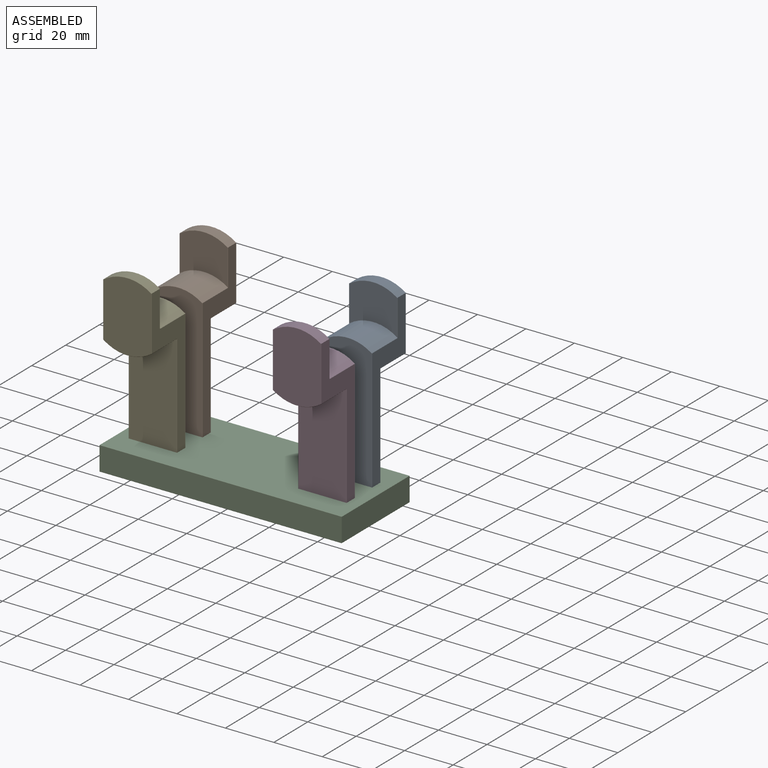
[diagram: assembled view]
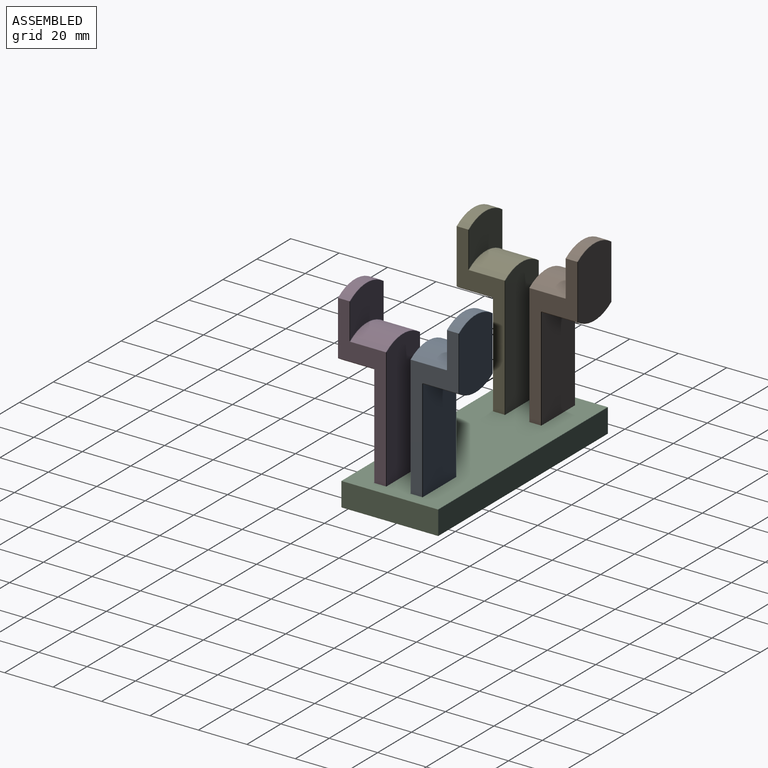
[diagram: assembled view, second angle]
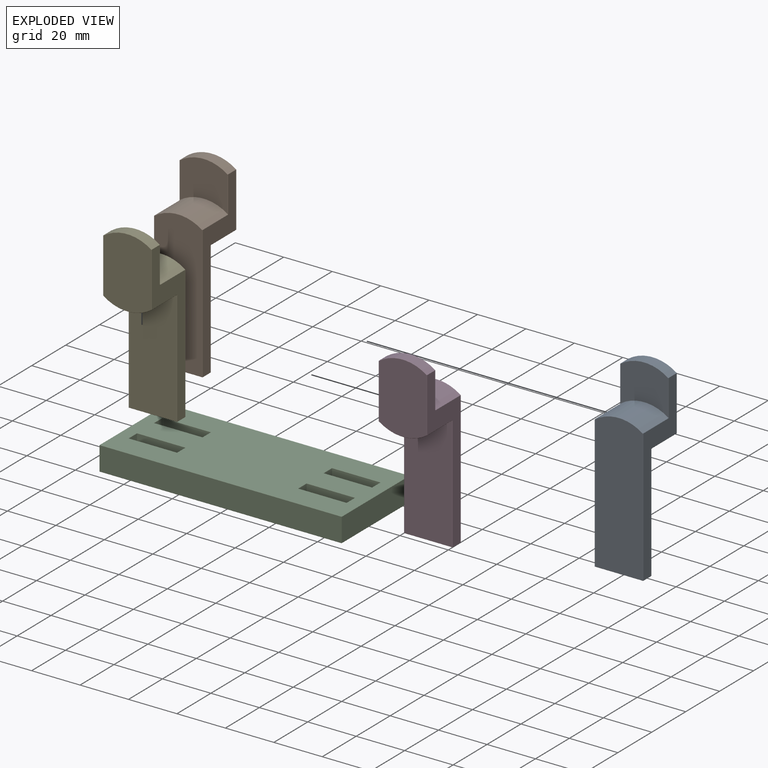
[diagram: exploded view]
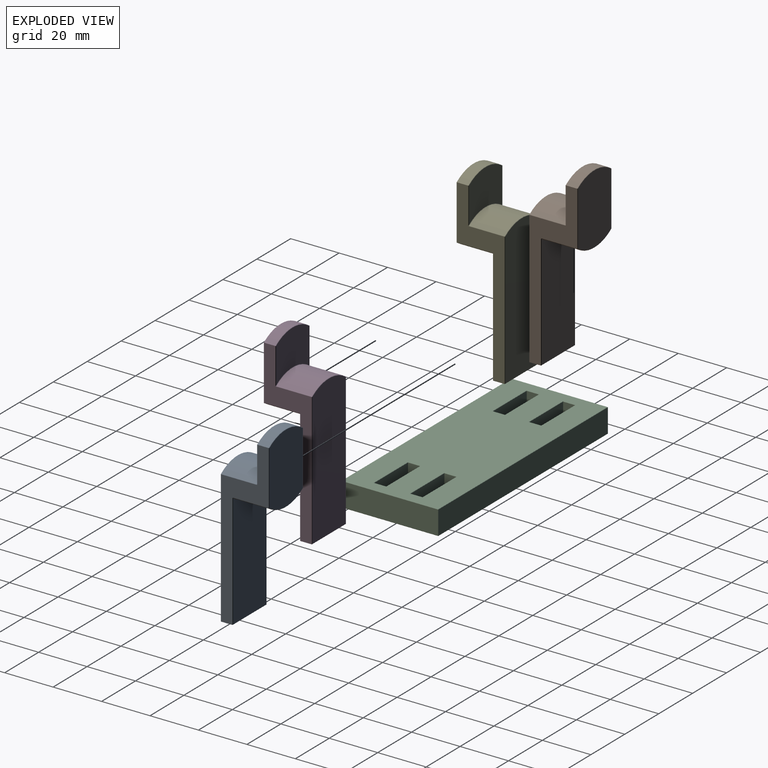
[diagram: exploded view, second angle]
ASSEMBLY  parts=5 mates=2
PART A: 38 faces, bbox 20x20x73.3 mm
  f0: plane 70x19.8mm, normal (-1,0,0), area 447mm2, adj f3,f7,f10,f11,f12,f15,f24,f25
  f1: cylinder r=17mm len=19.92mm, axis (0,-1,0), area 314.9mm2, adj f25,f32,f33,f37
  f2: plane 70x19.8mm, normal (1,0,0), area 447mm2, adj f3,f7,f17,f20,f22,f23,f31,f34
  f3: cylinder r=17mm len=20mm, axis (0,-1,0), area 102.6mm2, adj f0,f2,f16,f27
  f4: plane 28.8x19.8mm, normal (0,1,0), area 529.7mm2, adj f24,f27,f31,f32
  f5: plane 19.8x17.96mm, normal (0,-1,0), area 292.8mm2, adj f12,f16,f19,f20
  f6: cylinder r=17mm len=19.92mm, axis (0,1,0), area 314.9mm2, adj f11,f18,f19,f23
  f7: plane 20x4.8mm, normal (0,0,-1), area 96mm2, adj f0,f2,f13,f30
  f8: plane 58.05x19.8mm, normal (0,-1,0), area 1129.2mm2, adj f10,f13,f17,f18
  f9: plane 47.21x19.8mm, normal (0,1,0), area 892.2mm2, adj f26,f30,f33,f34
  f10: plane 54.95x0.1mm, normal (-0.71,-0.71,0), area 7.8mm2, adj f0,f8,f13,f14
  f11: plane 14.8x0.08mm, normal (-0.89,0,0.46), area 1.3mm2, adj f0,f6,f14,f15
  f12: plane 14.81x0.1mm, normal (-0.71,-0.71,0), area 2.1mm2, adj f0,f5,f15,f16
  f13: plane 20x0.1mm, normal (0,-0.71,-0.71), area 2.8mm2, adj f7,f8,f10,f17
  f14: plane 0.1x0.1mm, normal (-0.67,-0.67,0.34), area 0mm2, adj f10,f11,f18
  f15: bspline ~0.25x0.2mm, area 0mm2, adj f0,f11,f12,f19
  f16: cone r=16.9mm half-angle=45deg, axis (0,1,0), area 3mm2, adj f3,f5,f12,f20
  f17: plane 54.95x0.1mm, normal (0.71,-0.71,0), area 7.8mm2, adj f2,f8,f13,f21
  f18: cone r=16.9mm half-angle=45deg, axis (0,1,0), area 3mm2, adj f6,f8,f14,f21
  f19: cone r=17mm half-angle=45deg, axis (0,1,0), area 3mm2, adj f5,f6,f15,f22
  f20: plane 14.81x0.1mm, normal (0.71,-0.71,0), area 2.1mm2, adj f2,f5,f16,f22
  f21: plane 0.1x0.1mm, normal (0.67,-0.67,0.34), area 0mm2, adj f17,f18,f23
  f22: bspline ~0.25x0.2mm, area 0mm2, adj f2,f19,f20,f23
  f23: plane 14.8x0.08mm, normal (0.89,0,0.46), area 1.3mm2, adj f2,f6,f21,f22
  f24: plane 22.44x0.1mm, normal (-0.71,0.71,0), area 3.2mm2, adj f0,f4,f27,f28
  f25: plane 14.8x0.08mm, normal (-0.89,0,-0.46), area 1.3mm2, adj f0,f1,f28,f29
  f26: plane 47.31x0.1mm, normal (-0.71,0.71,0), area 6.7mm2, adj f0,f9,f29,f30
  f27: cone r=17mm half-angle=45deg, axis (0,-1,0), area 3mm2, adj f3,f4,f24,f31
  f28: plane 0.1x0.1mm, normal (-0.67,0.67,-0.34), area 0mm2, adj f24,f25,f32
  f29: bspline ~0.25x0.2mm, area 0mm2, adj f0,f25,f26,f33
  f30: plane 20x0.1mm, normal (0,0.71,-0.71), area 2.8mm2, adj f7,f9,f26,f34
  f31: plane 22.44x0.1mm, normal (0.71,0.71,0), area 3.2mm2, adj f2,f4,f27,f35
  f32: cone r=17mm half-angle=45deg, axis (0,-1,0), area 3mm2, adj f1,f4,f28,f35
  f33: cone r=17.1mm half-angle=45deg, axis (0,-1,0), area 3mm2, adj f1,f9,f29,f36
  f34: plane 47.31x0.1mm, normal (0.71,0.71,0), area 6.7mm2, adj f2,f9,f30,f36
  f35: plane 0.1x0.1mm, normal (0.67,0.67,-0.34), area 0mm2, adj f31,f32,f37
  f36: bspline ~0.25x0.2mm, area 0mm2, adj f2,f33,f34,f37
  f37: plane 14.8x0.08mm, normal (0.89,0,-0.46), area 1.3mm2, adj f1,f2,f35,f36
PART B: same geometry as A
PART C: 50 faces, bbox 100x40x10 mm
  f0: plane 99.8x39.8mm, normal (0,0,1), area 3551.9mm2, adj f30,f31,f32,f33,f34,f35,f36,f37
  f1: plane 100x9.8mm, normal (0,-1,0), area 980mm2, adj f2,f4,f27,f47
  f2: plane 40x9.8mm, normal (1,0,0), area 392mm2, adj f1,f3,f26,f46
  f3: plane 100x9.8mm, normal (0,1,0), area 980mm2, adj f2,f4,f28,f48
  f4: plane 40x9.8mm, normal (-1,0,0), area 392mm2, adj f1,f3,f29,f49
  f5: plane 99.8x39.8mm, normal (0,0,-1), area 3972mm2, adj f26,f27,f28,f29
  f6: plane 5x4.9mm, normal (-1,0,0), area 24.5mm2, adj f7,f9,f10,f42
  f7: plane 20x4.9mm, normal (0,-1,0), area 98mm2, adj f6,f8,f10,f43
  f8: plane 5x4.9mm, normal (1,0,0), area 24.5mm2, adj f7,f9,f10,f45
  f9: plane 20x4.9mm, normal (0,1,0), area 98mm2, adj f6,f8,f10,f44
  f10: plane 20x5mm, normal (0,0,1), area 100mm2, adj f6,f7,f8,f9
  f11: plane 5x4.9mm, normal (-1,0,0), area 24.5mm2, adj f12,f14,f15,f38
  f12: plane 20x4.9mm, normal (0,-1,0), area 98mm2, adj f11,f13,f15,f40
  f13: plane 5x4.9mm, normal (1,0,0), area 24.5mm2, adj f12,f14,f15,f41
  f14: plane 20x4.9mm, normal (0,1,0), area 98mm2, adj f11,f13,f15,f39
  f15: plane 20x5mm, normal (0,0,1), area 100mm2, adj f11,f12,f13,f14
  f16: plane 5x4.9mm, normal (1,0,0), area 24.5mm2, adj f17,f19,f20,f34
  f17: plane 20x4.9mm, normal (0,1,0), area 98mm2, adj f16,f18,f20,f36
  f18: plane 5x4.9mm, normal (-1,0,0), area 24.5mm2, adj f17,f19,f20,f37
  f19: plane 20x4.9mm, normal (0,-1,0), area 98mm2, adj f16,f18,f20,f35
  f20: plane 20x5mm, normal (0,0,1), area 100mm2, adj f16,f17,f18,f19
  f21: plane 5x4.9mm, normal (1,0,0), area 24.5mm2, adj f22,f24,f25,f30
  f22: plane 20x4.9mm, normal (0,1,0), area 98mm2, adj f21,f23,f25,f31
  f23: plane 5x4.9mm, normal (-1,0,0), area 24.5mm2, adj f22,f24,f25,f33
  f24: plane 20x4.9mm, normal (0,-1,0), area 98mm2, adj f21,f23,f25,f32
  f25: plane 20x5mm, normal (0,0,1), area 100mm2, adj f21,f22,f23,f24
  f26: plane 40x0.1mm, normal (0.71,0,-0.71), area 5.6mm2, adj f2,f5,f27,f28
  f27: plane 100x0.1mm, normal (0,-0.71,-0.71), area 14.1mm2, adj f1,f5,f26,f29
  f28: plane 100x0.1mm, normal (0,0.71,-0.71), area 14.1mm2, adj f3,f5,f26,f29
  f29: plane 40x0.1mm, normal (-0.71,0,-0.71), area 5.6mm2, adj f4,f5,f27,f28
  f30: plane 5.2x0.1mm, normal (0.71,0,0.71), area 0.7mm2, adj f0,f21,f31,f32
  f31: plane 20.2x0.1mm, normal (0,0.71,0.71), area 2.8mm2, adj f0,f22,f30,f33
  f32: plane 20.2x0.1mm, normal (0,-0.71,0.71), area 2.8mm2, adj f0,f24,f30,f33
  f33: plane 5.2x0.1mm, normal (-0.71,0,0.71), area 0.7mm2, adj f0,f23,f31,f32
  f34: plane 5.2x0.1mm, normal (0.71,0,0.71), area 0.7mm2, adj f0,f16,f35,f36
  f35: plane 20.2x0.1mm, normal (0,-0.71,0.71), area 2.8mm2, adj f0,f19,f34,f37
  f36: plane 20.2x0.1mm, normal (0,0.71,0.71), area 2.8mm2, adj f0,f17,f34,f37
  f37: plane 5.2x0.1mm, normal (-0.71,0,0.71), area 0.7mm2, adj f0,f18,f35,f36
  f38: plane 5.2x0.1mm, normal (-0.71,0,0.71), area 0.7mm2, adj f0,f11,f39,f40
  f39: plane 20.2x0.1mm, normal (0,0.71,0.71), area 2.8mm2, adj f0,f14,f38,f41
  f40: plane 20.2x0.1mm, normal (0,-0.71,0.71), area 2.8mm2, adj f0,f12,f38,f41
  f41: plane 5.2x0.1mm, normal (0.71,0,0.71), area 0.7mm2, adj f0,f13,f39,f40
  f42: plane 5.2x0.1mm, normal (-0.71,0,0.71), area 0.7mm2, adj f0,f6,f43,f44
  f43: plane 20.2x0.1mm, normal (0,-0.71,0.71), area 2.8mm2, adj f0,f7,f42,f45
  f44: plane 20.2x0.1mm, normal (0,0.71,0.71), area 2.8mm2, adj f0,f9,f42,f45
  f45: plane 5.2x0.1mm, normal (0.71,0,0.71), area 0.7mm2, adj f0,f8,f43,f44
  f46: plane 40x0.1mm, normal (0.71,0,0.71), area 5.6mm2, adj f0,f2,f47,f48
  f47: plane 100x0.1mm, normal (0,-0.71,0.71), area 14.1mm2, adj f0,f1,f46,f49
  f48: plane 100x0.1mm, normal (0,0.71,0.71), area 14.1mm2, adj f0,f3,f46,f49
  f49: plane 40x0.1mm, normal (-0.71,0,0.71), area 5.6mm2, adj f0,f4,f47,f48
PART D: same geometry as A
PART E: same geometry as A
PLACE A t=(35,20,40)mm
PLACE B t=(-35,20,40)mm
PLACE C at identity fixed
PLACE D rot(axis=(0,0,1),180deg) t=(35,-20,40)mm
PLACE E rot(axis=(0,0,1),180deg) t=(-35,-20,40)mm
MATE fastened B.f7 <-> C.f15  axis (0,0,-1) through (-35,7.5,5)mm
MATE fastened E.f7 <-> C.f10  axis (0,0,-1) through (-35,-7.5,5)mm
